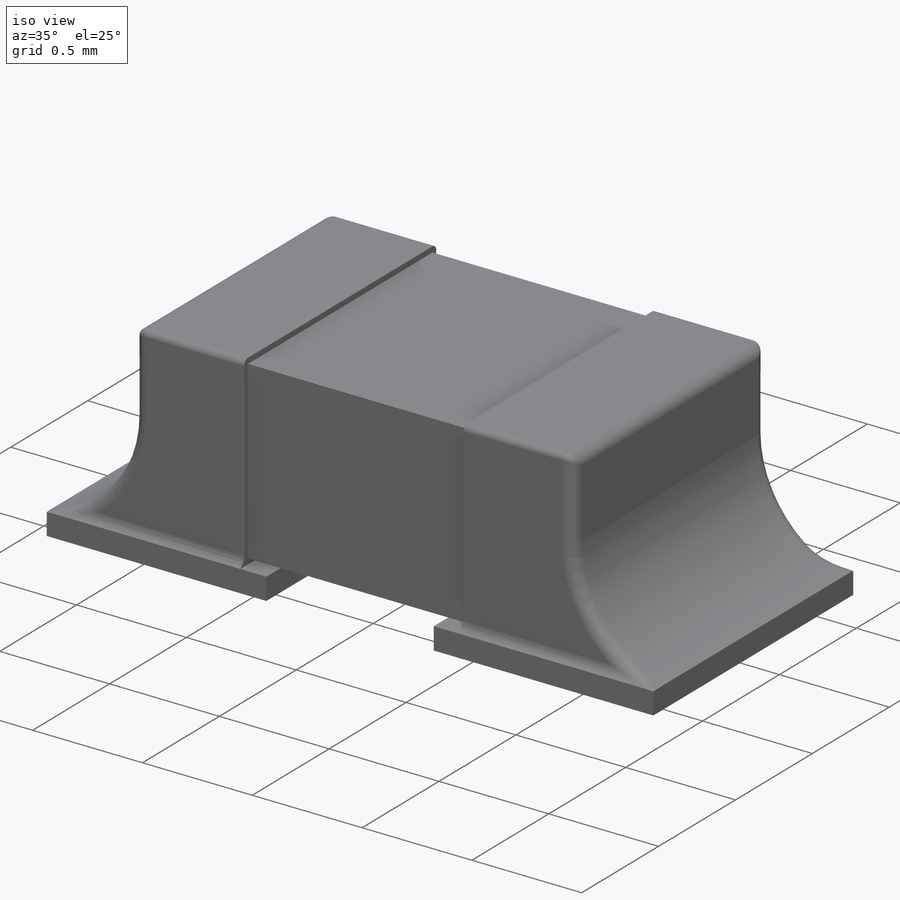
[diagram: iso view]
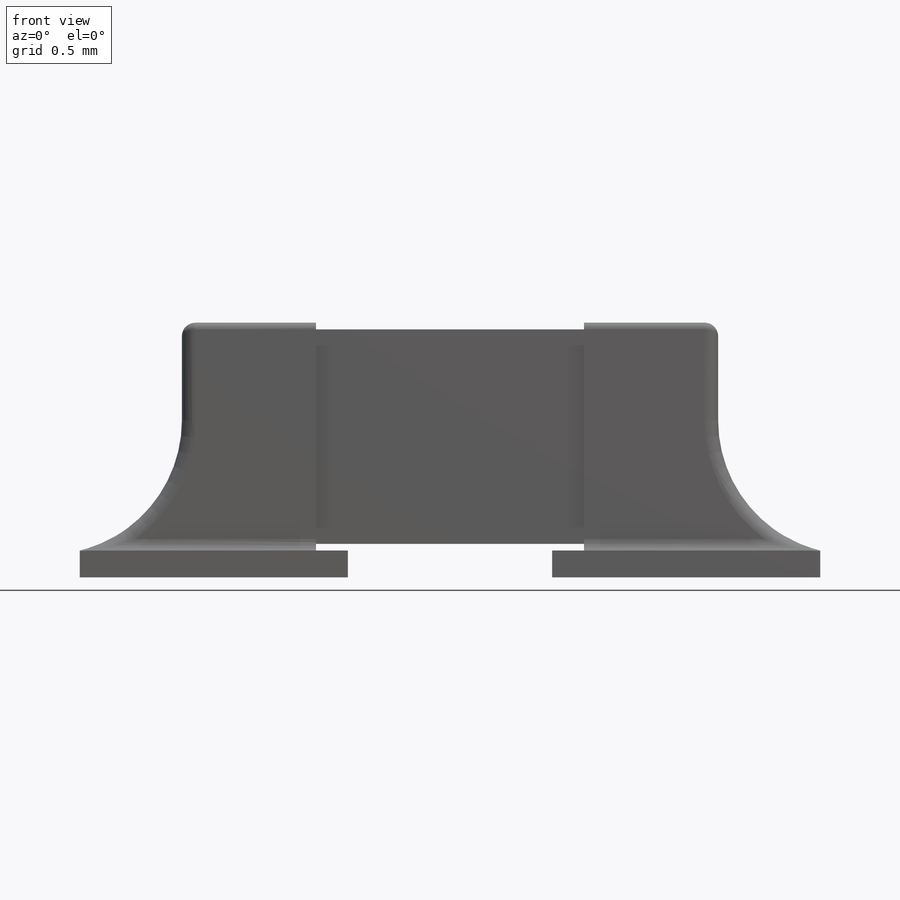
[diagram: front view]
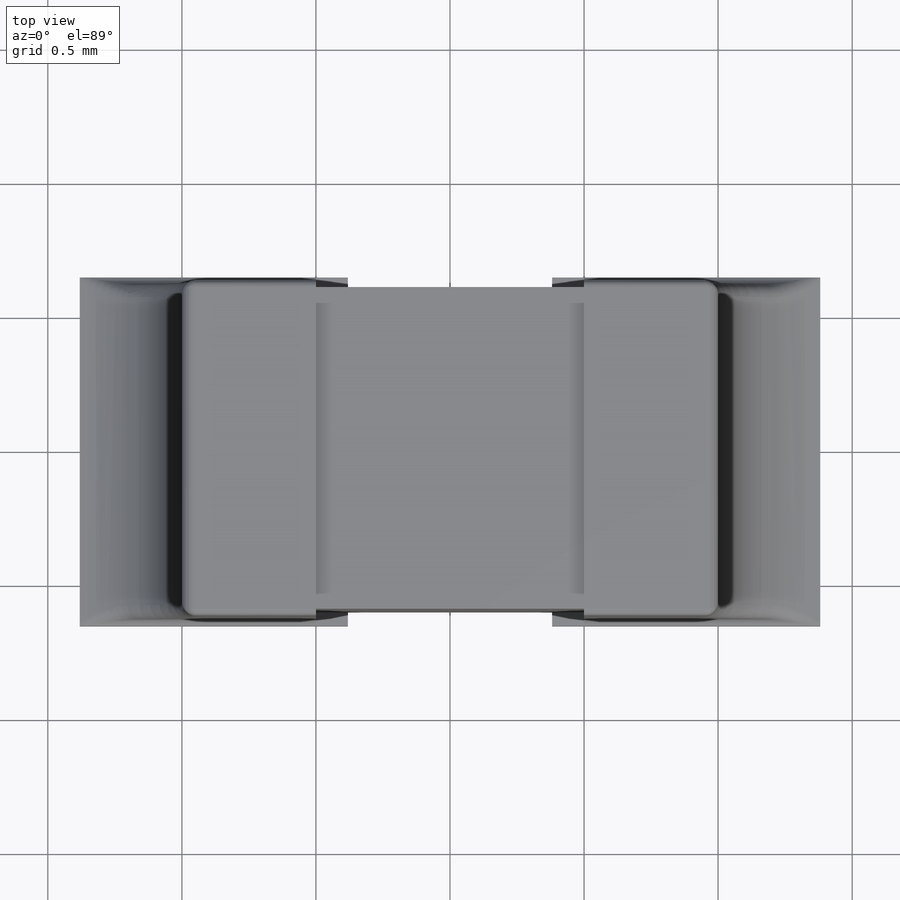
[diagram: top view]
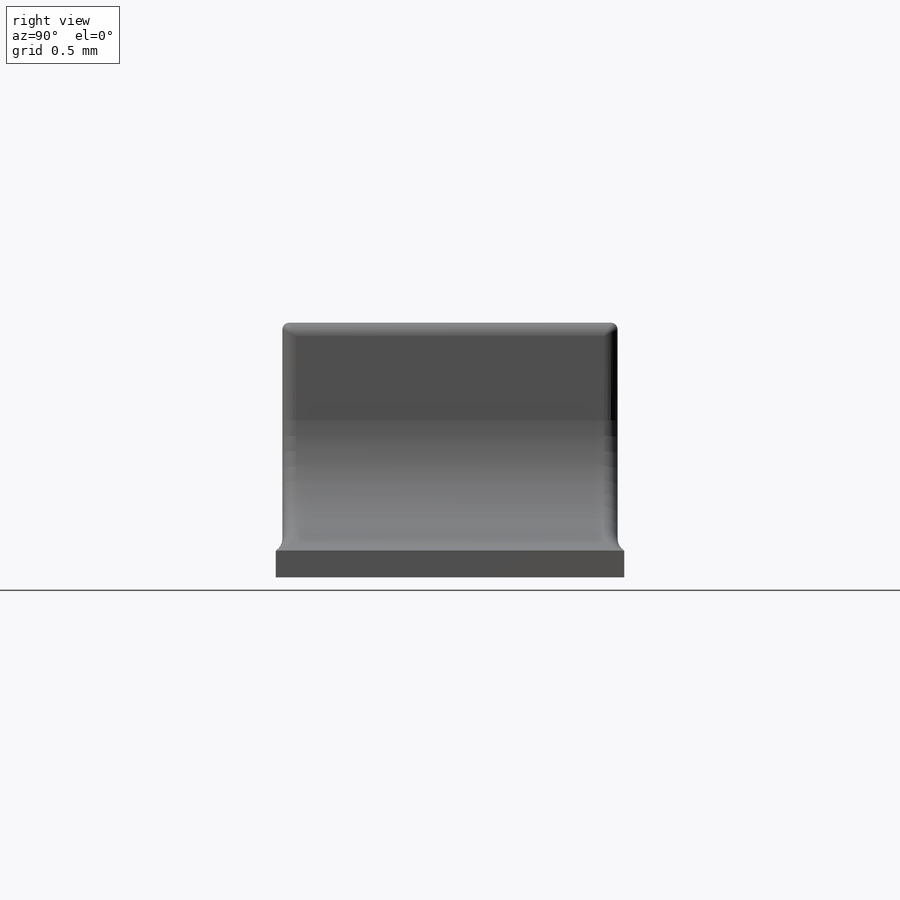
[diagram: right view]
SOLIDWORKS PART (.sldprt)
format: sldprt  version: not decoded by parser v0  size: 348,160 bytes
history: native  units: mm
features: sketch x4, extrude x4, fillet x3, material x1 (+12 scaffold rows collapsed)
feature tree (24):
  scaffold x12  (default folders/planes/origin — collapsed)
  material  "6063-O"
  sketch  "Sketch1"  dims[D1=1.2mm D2=0.8mm D3=0.125mm D4=0.6mm]
  extrude  "Boss-Extrude1"  Depth=1mm
  sketch  "Sketch3"  dims[D5=0.025mm D1=1.25mm D2=0.625mm D3=0.85mm D4=0.1mm]
  extrude  "Boss-Extrude2"  Depth=0.5mm
  sketch  "Sketch5"  dims[D1=0.025mm]
  extrude  "Boss-Extrude3"  Depth=0.5mm
  sketch  "Sketch6"  dims[D1=1.0mm D2=1.3mm D3=0.381mm D4=0.65mm D5=0.381mm]
  extrude  "Boss-Extrude4"  Depth=0.1mm
  fillet  "Fillet5"  Radius=0.05mm
  fillet  "Fillet7"  Radius=0.5mm
  fillet  "Fillet8"  Radius=0.05mm
decode coverage: 11 of 11 modeling features carry decoded parameters
note: suppression state not decoded; provenance and decode notes live in map.json
